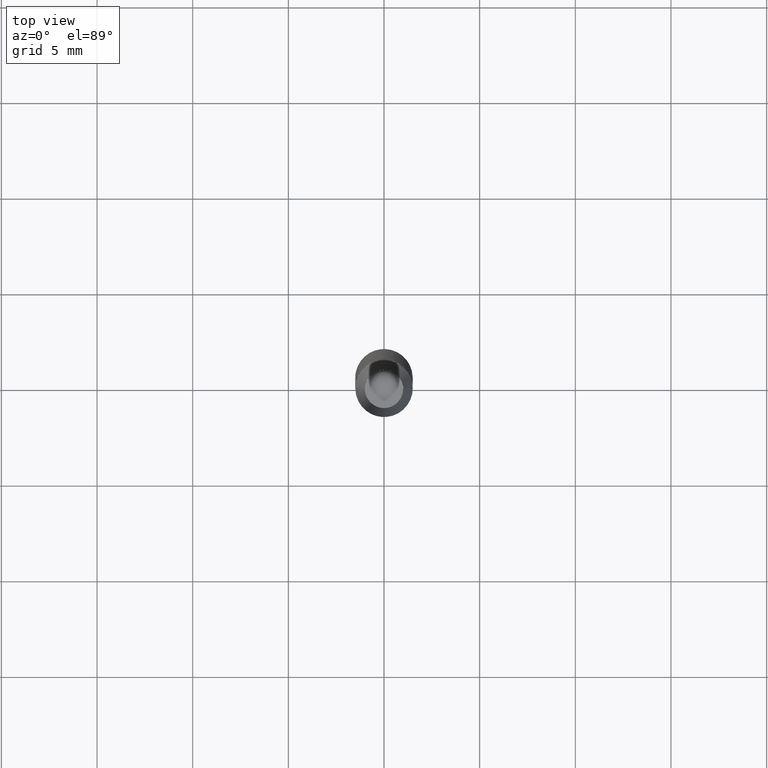
[diagram: clean part render]
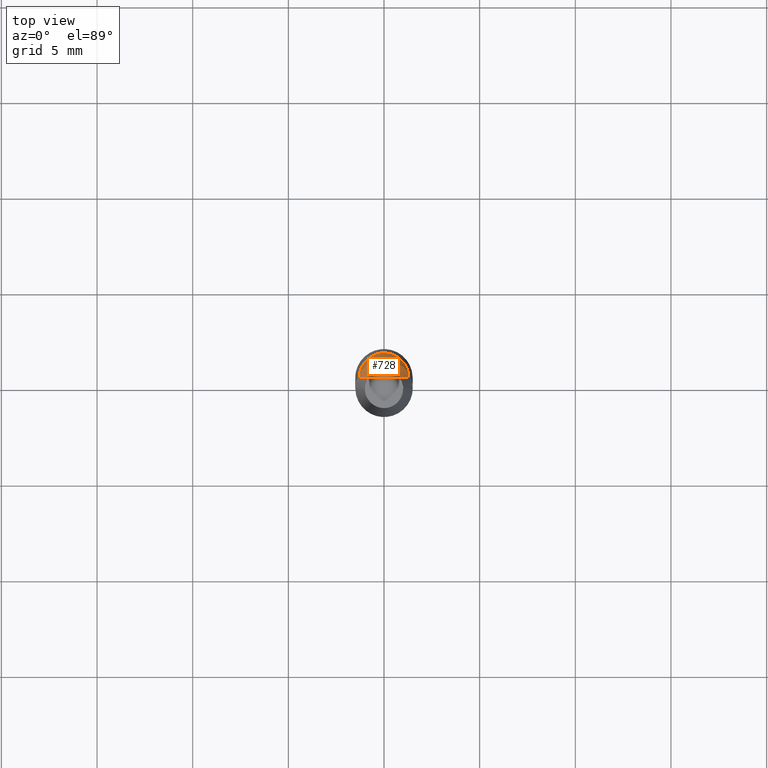
[diagram: same view with one face highlighted and labeled with its STEP entity id]
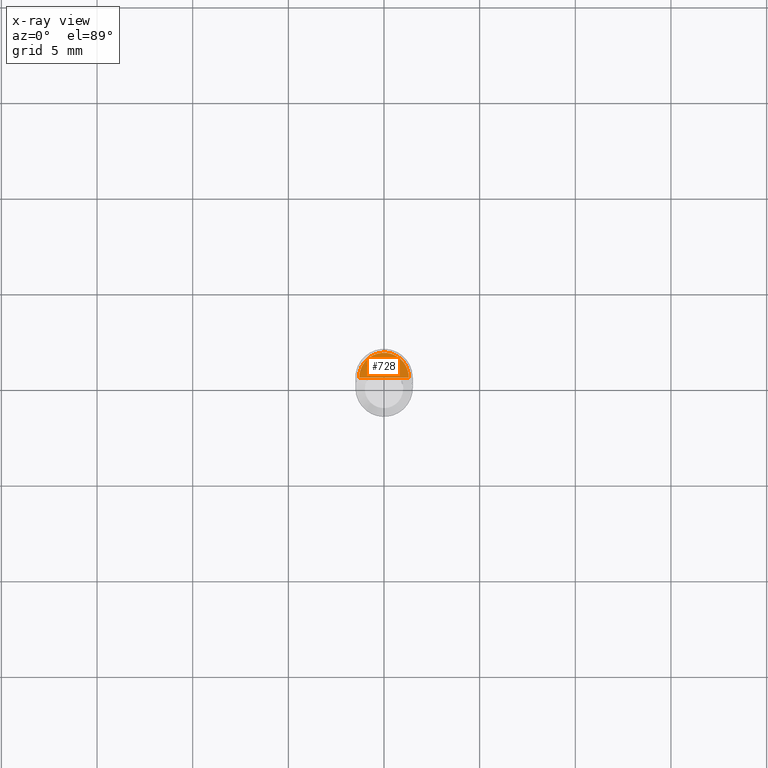
[diagram: x-ray of the same camera — body ghosted, the highlighted face saturated]
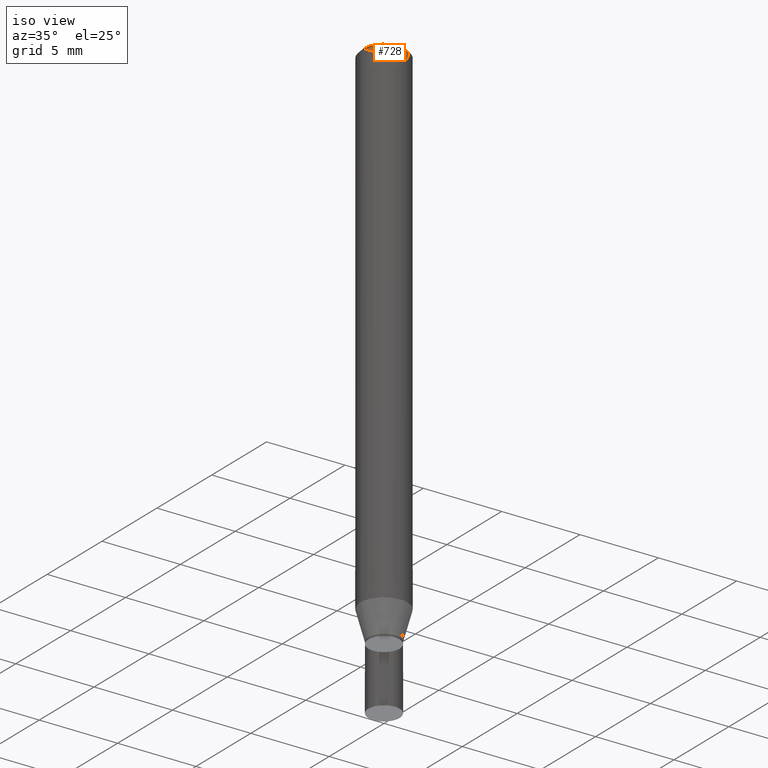
[diagram: same view with one face highlighted and labeled with its STEP entity id]
A machine part, top view. The second image highlights one B-rep face of the part: STEP entity #728.
The next image is the same camera in x-ray: the body ghosted, the highlighted face saturated — about 0% of this face is hidden behind the body in this view.
A second angle (iso view) of the same face is appended — the face is thin or edge-on in the first view.
In plain terms, the highlighted face is a freeform B-spline surface patch.
Its self-contained STEP definition (entity closure, byte-faithful):
#485=CARTESIAN_POINT('',(1.3,0.0,32.0));
#486=CARTESIAN_POINT('',(1.3,1.3,32.0));
#487=CARTESIAN_POINT('',(0.0,1.3,32.0));
#488=CARTESIAN_POINT('',(-1.3,1.3,32.0));
#489=CARTESIAN_POINT('',(-1.3,0.0,32.0));
#490=CARTESIAN_POINT('',(0.0,0.0,32.0));
#713=(
BOUNDED_SURFACE()
B_SPLINE_SURFACE(1,2,(
(#485,#486,#487,#488,#489),
(#490,#490,#490,#490,#490)
), .UNSPECIFIED.,.F.,.F.,.F.)
B_SPLINE_SURFACE_WITH_KNOTS((2,2),(3,2,3),(
0.0,1.0),(
0.0,0.5,1.0), .UNSPECIFIED.)
GEOMETRIC_REPRESENTATION_ITEM()
RATIONAL_B_SPLINE_SURFACE(((1.0,0.707106781187,1.0,0.707106781187,1.0),
(1.0,0.707106781187,1.0,0.707106781187,1.0)
))
REPRESENTATION_ITEM('')
SURFACE()
);
#714=(
BOUNDED_CURVE()
B_SPLINE_CURVE(2,(#489,#488,#487,#486,#485),.UNSPECIFIED.,.F.,.F.)
B_SPLINE_CURVE_WITH_KNOTS((3,2,3),
(0.0,0.5,1.0),.UNSPECIFIED.)
CURVE()
GEOMETRIC_REPRESENTATION_ITEM()
RATIONAL_B_SPLINE_CURVE((1.0,0.707106781187,1.0,0.707106781187,1.0))
REPRESENTATION_ITEM('')
);
#715=(
BOUNDED_CURVE()
B_SPLINE_CURVE(1,(#485,#490),.UNSPECIFIED.,.F.,.F.)
B_SPLINE_CURVE_WITH_KNOTS((2,2),
(0.0,1.0),.UNSPECIFIED.)
CURVE()
GEOMETRIC_REPRESENTATION_ITEM()
RATIONAL_B_SPLINE_CURVE((1.0,1.0))
REPRESENTATION_ITEM('')
);
#716=(
BOUNDED_CURVE()
B_SPLINE_CURVE(1,(#490,#489),.UNSPECIFIED.,.F.,.F.)
B_SPLINE_CURVE_WITH_KNOTS((2,2),
(0.0,1.0),.UNSPECIFIED.)
CURVE()
GEOMETRIC_REPRESENTATION_ITEM()
RATIONAL_B_SPLINE_CURVE((1.0,1.0))
REPRESENTATION_ITEM('')
);
#717=VERTEX_POINT('',#485);
#718=VERTEX_POINT('',#489);
#719=VERTEX_POINT('',#490);
#720=EDGE_CURVE('',#718,#717,#714,.T.);
#721=EDGE_CURVE('',#717,#719,#715,.T.);
#722=EDGE_CURVE('',#719,#718,#716,.T.);
#723=ORIENTED_EDGE('',*,*,#720,.T.);
#724=ORIENTED_EDGE('',*,*,#721,.T.);
#725=ORIENTED_EDGE('',*,*,#722,.T.);
#726=EDGE_LOOP('',(#723,#724,#725));
#727=FACE_OUTER_BOUND('',#726,.T.);
#728=ADVANCED_FACE('',(#727),#713,.T.);